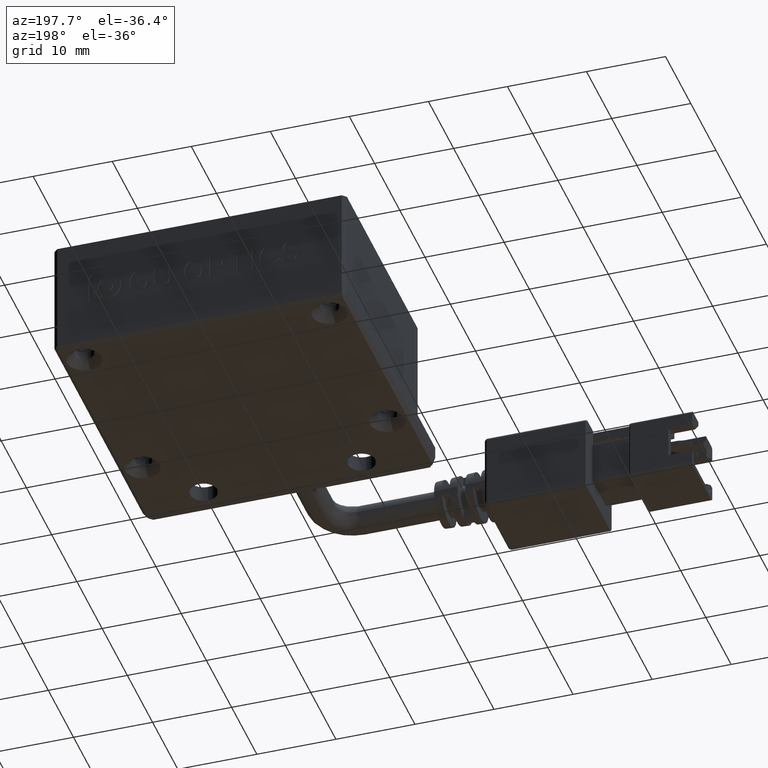
[diagram: clean part render]
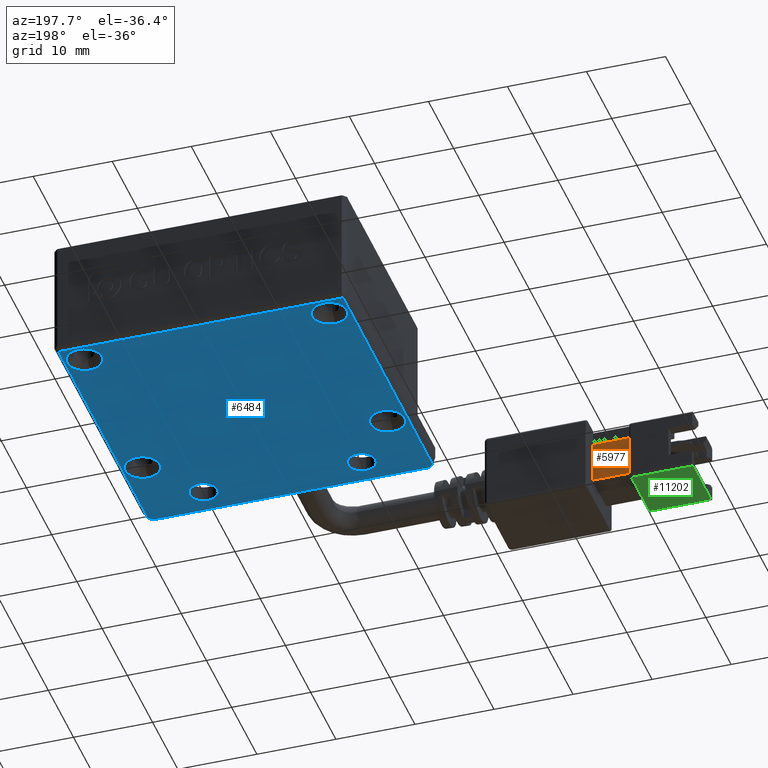
[diagram: same view with three faces highlighted in distinct colors, each labeled with its STEP entity id]
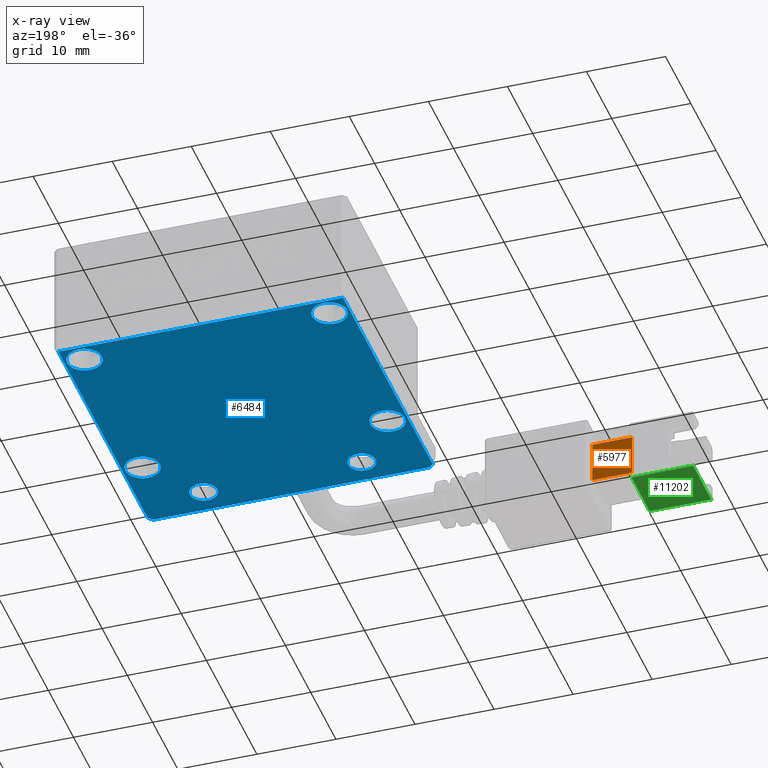
[diagram: x-ray of the same camera — body ghosted, the three highlighted faces saturated]
A machine part, auxiliary view with three faces highlighted in distinct colors.
The next image is the same camera in x-ray (body ghosted, the three faces saturated) — at least one of them is partly hidden behind the body in this view.
Their STEP definitions:

[orange] entity #5977 — the highlighted planar face has unit normal (0, -1, -0).
#1765 = VECTOR ( 'NONE', #11277, 1000.000000000000000 ) ;
#2412 = LINE ( 'NONE', #21560, #1765 ) ;
#3369 = VERTEX_POINT ( 'NONE', #19248 ) ;
#3651 = VECTOR ( 'NONE', #13303, 1000.000000000000000 ) ;
#4696 = DIRECTION ( 'NONE',  ( 0.0000000000000000000, -8.673617379884035500E-017, 1.000000000000000000 ) ) ;
#5977 = ADVANCED_FACE ( 'NONE', ( #10881 ), #25458, .F. ) ;
#6664 = EDGE_CURVE ( 'NONE', #3369, #18901, #2412, .T. ) ;
#7167 = EDGE_CURVE ( 'NONE', #18901, #10042, #19402, .T. ) ;
#10042 = VERTEX_POINT ( 'NONE', #12379 ) ;
#10335 = EDGE_LOOP ( 'NONE', ( #17642, #25910, #16051, #19518 ) ) ;
#10881 = FACE_OUTER_BOUND ( 'NONE', #10335, .T. ) ;
#11260 = CARTESIAN_POINT ( 'NONE',  ( -38.52940053455518700, -35.30364642993505700, 1.249999999983630000 ) ) ;
#11277 = DIRECTION ( 'NONE',  ( -1.000000000000000000, -6.162975822039154700E-033, -5.345529420184391300E-049 ) ) ;
#11693 = LINE ( 'NONE', #24256, #21320 ) ;
#12379 = CARTESIAN_POINT ( 'NONE',  ( -38.52940053455518700, -35.30364642993505700, 1.349999999983630300 ) ) ;
#13303 = DIRECTION ( 'NONE',  ( -0.0000000000000000000, 8.673617379884035500E-017, -1.000000000000000000 ) ) ;
#13313 = DIRECTION ( 'NONE',  ( 0.0000000000000000000, -8.673617379884035500E-017, 1.000000000000000000 ) ) ;
#13393 = CARTESIAN_POINT ( 'NONE',  ( -38.52940053455518700, -35.30364642993505700, 6.649999999983631200 ) ) ;
#13599 = VECTOR ( 'NONE', #4696, 1000.000000000000000 ) ;
#14227 = LINE ( 'NONE', #14944, #13599 ) ;
#14944 = CARTESIAN_POINT ( 'NONE',  ( -33.52940053455518000, -35.30364642993505700, 8.999999999983622000 ) ) ;
#16051 = ORIENTED_EDGE ( 'NONE', *, *, #6664, .F. ) ;
#17642 = ORIENTED_EDGE ( 'NONE', *, *, #21570, .F. ) ;
#18081 = CARTESIAN_POINT ( 'NONE',  ( -33.52940053455518000, -35.30364642993505700, 1.349999999983630300 ) ) ;
#18185 = DIRECTION ( 'NONE',  ( 1.000000000000000000, 6.162975822039154700E-033, 5.345529420184391300E-049 ) ) ;
#18528 = VERTEX_POINT ( 'NONE', #18081 ) ;
#18901 = VERTEX_POINT ( 'NONE', #13393 ) ;
#19248 = CARTESIAN_POINT ( 'NONE',  ( -33.52940053455518000, -35.30364642993505700, 6.649999999983631200 ) ) ;
#19402 = LINE ( 'NONE', #25537, #3651 ) ;
#19518 = ORIENTED_EDGE ( 'NONE', *, *, #21873, .F. ) ;
#19818 = AXIS2_PLACEMENT_3D ( 'NONE', #11260, #25551, #13313 ) ;
#21320 = VECTOR ( 'NONE', #18185, 1000.000000000000000 ) ;
#21560 = CARTESIAN_POINT ( 'NONE',  ( -38.52940053455518700, -35.30364642993505700, 6.649999999983631200 ) ) ;
#21570 = EDGE_CURVE ( 'NONE', #10042, #18528, #11693, .T. ) ;
#21873 = EDGE_CURVE ( 'NONE', #18528, #3369, #14227, .T. ) ;
#24256 = CARTESIAN_POINT ( 'NONE',  ( -38.52940053455518700, -35.30364642993505700, 1.349999999983630300 ) ) ;
#25458 = PLANE ( 'NONE',  #19818 ) ;
#25537 = CARTESIAN_POINT ( 'NONE',  ( -38.52940053455518700, -35.30364642993505700, 1.249999999983630000 ) ) ;
#25551 = DIRECTION ( 'NONE',  ( 6.162975822039154700E-033, -1.000000000000000000, -8.673617379884035500E-017 ) ) ;
#25910 = ORIENTED_EDGE ( 'NONE', *, *, #7167, .F. ) ;

[blue] entity #6484 — the highlighted planar face has unit normal (0, -0, 1).
#192 = DIRECTION ( 'NONE',  ( 1.368455531567204200E-047, -2.465190328815661900E-032, 1.000000000000000000 ) ) ;
#276 = ORIENTED_EDGE ( 'NONE', *, *, #20000, .T. ) ;
#393 = PLANE ( 'NONE',  #737 ) ;
#419 = CARTESIAN_POINT ( 'NONE',  ( 10.47059946544484400, -19.05364642993505300, -2.000000000016368700 ) ) ;
#491 = DIRECTION ( 'NONE',  ( 1.368455531567204200E-047, -2.465190328815661900E-032, 1.000000000000000000 ) ) ;
#492 = FACE_BOUND ( 'NONE', #16336, .T. ) ;
#737 = AXIS2_PLACEMENT_3D ( 'NONE', #23017, #10757, #25064 ) ;
#829 = CARTESIAN_POINT ( 'NONE',  ( -17.52940053455515800, -22.05364642993504600, -2.000000000016368700 ) ) ;
#874 = CARTESIAN_POINT ( 'NONE',  ( 18.47059946544483100, 13.44635357006495500, -2.000000000016368700 ) ) ;
#969 = CARTESIAN_POINT ( 'NONE',  ( 15.97059946544482400, 10.94635357006494500, -1.999999999969075200 ) ) ;
#1031 = AXIS2_PLACEMENT_3D ( 'NONE', #25839, #13612, #1333 ) ;
#1046 = CIRCLE ( 'NONE', #1031, 2.199999999948402800 ) ;
#1333 = DIRECTION ( 'NONE',  ( 0.0000000000000000000, 1.000000000000000000, 0.0000000000000000000 ) ) ;
#1709 = EDGE_CURVE ( 'NONE', #25568, #11485, #10694, .T. ) ;
#1777 = CARTESIAN_POINT ( 'NONE',  ( 17.97059946544484500, -22.55364642993505300, -2.000000000016368700 ) ) ;
#1917 = DIRECTION ( 'NONE',  ( 0.0000000000000000000, -1.000000000000000000, 0.0000000000000000000 ) ) ;
#2508 = DIRECTION ( 'NONE',  ( 0.0000000000000000000, -1.000000000000000000, 0.0000000000000000000 ) ) ;
#2538 = ORIENTED_EDGE ( 'NONE', *, *, #19953, .T. ) ;
#2610 = DIRECTION ( 'NONE',  ( 1.110223024625158300E-016, -1.000000000000000000, -2.465190328815661900E-032 ) ) ;
#2900 = CARTESIAN_POINT ( 'NONE',  ( 15.97059946544482400, 8.746353570116543400, -1.999999999969075200 ) ) ;
#2916 = DIRECTION ( 'NONE',  ( -1.110223024625158300E-016, 1.000000000000000000, 2.465190328815661900E-032 ) ) ;
#2953 = LINE ( 'NONE', #4654, #13845 ) ;
#3053 = DIRECTION ( 'NONE',  ( 0.0000000000000000000, 1.000000000000000000, 0.0000000000000000000 ) ) ;
#3391 = CIRCLE ( 'NONE', #11536, 1.749999999999998000 ) ;
#3448 = EDGE_CURVE ( 'NONE', #20869, #5833, #14948, .T. ) ;
#3492 = EDGE_LOOP ( 'NONE', ( #16125, #18257 ) ) ;
#3867 = CARTESIAN_POINT ( 'NONE',  ( 10.47059946544484400, -19.05364642993505300, -2.000000000016368700 ) ) ;
#4097 = ORIENTED_EDGE ( 'NONE', *, *, #9695, .T. ) ;
#4267 = EDGE_CURVE ( 'NONE', #12149, #11485, #2953, .T. ) ;
#4654 = CARTESIAN_POINT ( 'NONE',  ( 18.97059946544484200, -22.55364642993505300, -2.000000000016368700 ) ) ;
#4691 = DIRECTION ( 'NONE',  ( 1.368455531567204200E-047, -2.465190328815661900E-032, 1.000000000000000000 ) ) ;
#4883 = CARTESIAN_POINT ( 'NONE',  ( -15.02940053455515300, -12.05364642993506100, -2.000000000082761800 ) ) ;
#4892 = CARTESIAN_POINT ( 'NONE',  ( 10.47059946544484400, -20.80364642993505000, -2.000000000016368700 ) ) ;
#5019 = LINE ( 'NONE', #18341, #21390 ) ;
#5119 = DIRECTION ( 'NONE',  ( 0.7071067811865541200, -0.7071067811865408000, -1.743152798421033900E-032 ) ) ;
#5377 = CARTESIAN_POINT ( 'NONE',  ( -15.02940053455515300, -9.853646429897528600, -2.000000000082761800 ) ) ;
#5418 = CARTESIAN_POINT ( 'NONE',  ( 18.97059946544483500, 13.44635357006494800, -2.000000000016368700 ) ) ;
#5669 = ORIENTED_EDGE ( 'NONE', *, *, #3448, .T. ) ;
#5769 = DIRECTION ( 'NONE',  ( 0.0000000000000000000, 1.000000000000000000, 0.0000000000000000000 ) ) ;
#5833 = VERTEX_POINT ( 'NONE', #20943 ) ;
#5914 = DIRECTION ( 'NONE',  ( 0.0000000000000000000, -1.000000000000000000, 0.0000000000000000000 ) ) ;
#5931 = CARTESIAN_POINT ( 'NONE',  ( 15.97059946544482400, 10.94635357006494500, -1.999999999969075200 ) ) ;
#5954 = FACE_BOUND ( 'NONE', #3492, .T. ) ;
#6093 = AXIS2_PLACEMENT_3D ( 'NONE', #3867, #18232, #5914 ) ;
#6454 = AXIS2_PLACEMENT_3D ( 'NONE', #969, #15342, #3053 ) ;
#6484 = ADVANCED_FACE ( 'NONE', ( #492, #5954, #8547, #11428, #21666, #16227, #10799 ), #393, .F. ) ;
#7614 = EDGE_CURVE ( 'NONE', #16915, #12194, #11925, .T. ) ;
#7676 = AXIS2_PLACEMENT_3D ( 'NONE', #12525, #192, #14564 ) ;
#8005 = DIRECTION ( 'NONE',  ( 0.0000000000000000000, 1.000000000000000000, 0.0000000000000000000 ) ) ;
#8288 = ORIENTED_EDGE ( 'NONE', *, *, #19084, .T. ) ;
#8489 = CARTESIAN_POINT ( 'NONE',  ( -15.02940053455515800, 8.746353570116536200, -1.999999999969075200 ) ) ;
#8547 = FACE_BOUND ( 'NONE', #23943, .T. ) ;
#8897 = VERTEX_POINT ( 'NONE', #2900 ) ;
#8978 = VERTEX_POINT ( 'NONE', #13470 ) ;
#9047 = CIRCLE ( 'NONE', #6093, 1.749999999999998000 ) ;
#9068 = VERTEX_POINT ( 'NONE', #15796 ) ;
#9157 = VERTEX_POINT ( 'NONE', #11929 ) ;
#9695 = EDGE_CURVE ( 'NONE', #9157, #15280, #1046, .T. ) ;
#10291 = LINE ( 'NONE', #14904, #12876 ) ;
#10694 = LINE ( 'NONE', #25435, #26336 ) ;
#10757 = DIRECTION ( 'NONE',  ( 1.368455531567204200E-047, -2.465190328815661900E-032, 1.000000000000000000 ) ) ;
#10799 = FACE_OUTER_BOUND ( 'NONE', #12743, .T. ) ;
#10879 = ORIENTED_EDGE ( 'NONE', *, *, #17390, .F. ) ;
#11041 = EDGE_CURVE ( 'NONE', #8978, #8897, #22028, .T. ) ;
#11247 = CIRCLE ( 'NONE', #23319, 2.199999999948402800 ) ;
#11415 = DIRECTION ( 'NONE',  ( 1.368455531567204200E-047, -2.465190328815661900E-032, 1.000000000000000000 ) ) ;
#11428 = FACE_BOUND ( 'NONE', #15932, .T. ) ;
#11485 = VERTEX_POINT ( 'NONE', #21700 ) ;
#11536 = AXIS2_PLACEMENT_3D ( 'NONE', #26429, #14173, #1917 ) ;
#11537 = CIRCLE ( 'NONE', #15911, 2.200000000037532800 ) ;
#11925 = CIRCLE ( 'NONE', #7676, 2.200000000037532800 ) ;
#11929 = CARTESIAN_POINT ( 'NONE',  ( -15.02940053455515800, 13.14635357001334100, -1.999999999969075200 ) ) ;
#12075 = DIRECTION ( 'NONE',  ( 1.368455531567204200E-047, -2.465190328815661900E-032, 1.000000000000000000 ) ) ;
#12149 = VERTEX_POINT ( 'NONE', #1777 ) ;
#12194 = VERTEX_POINT ( 'NONE', #12819 ) ;
#12277 = VERTEX_POINT ( 'NONE', #4892 ) ;
#12380 = VERTEX_POINT ( 'NONE', #25344 ) ;
#12525 = CARTESIAN_POINT ( 'NONE',  ( 15.97059946544484400, -12.05364642993505700, -2.000000000082761800 ) ) ;
#12743 = EDGE_LOOP ( 'NONE', ( #17471, #22782, #19150, #21048, #10879, #17853 ) ) ;
#12813 = CARTESIAN_POINT ( 'NONE',  ( -15.02940053455515800, 10.94635357006493900, -1.999999999969075200 ) ) ;
#12819 = CARTESIAN_POINT ( 'NONE',  ( 15.97059946544484400, -9.853646429897525000, -2.000000000082761800 ) ) ;
#12876 = VECTOR ( 'NONE', #2610, 1000.000000000000000 ) ;
#13055 = CIRCLE ( 'NONE', #24469, 2.200000000037532800 ) ;
#13057 = VERTEX_POINT ( 'NONE', #14190 ) ;
#13470 = CARTESIAN_POINT ( 'NONE',  ( 15.97059946544482400, 13.14635357001334800, -1.999999999969075200 ) ) ;
#13603 = DIRECTION ( 'NONE',  ( 1.000000000000000000, 1.110223024625158300E-016, -1.094764425253762900E-047 ) ) ;
#13612 = DIRECTION ( 'NONE',  ( 1.368455531567204200E-047, -2.465190328815661900E-032, 1.000000000000000000 ) ) ;
#13842 = VERTEX_POINT ( 'NONE', #874 ) ;
#13845 = VECTOR ( 'NONE', #25189, 1000.000000000000000 ) ;
#13915 = EDGE_CURVE ( 'NONE', #12380, #13842, #25519, .T. ) ;
#14033 = EDGE_CURVE ( 'NONE', #12194, #16915, #13055, .T. ) ;
#14037 = AXIS2_PLACEMENT_3D ( 'NONE', #17015, #4691, #19082 ) ;
#14173 = DIRECTION ( 'NONE',  ( 1.368455531567204200E-047, -2.465190328815661900E-032, 1.000000000000000000 ) ) ;
#14190 = CARTESIAN_POINT ( 'NONE',  ( 10.47059946544484400, -17.30364642993505700, -2.000000000016368700 ) ) ;
#14564 = DIRECTION ( 'NONE',  ( 0.0000000000000000000, 1.000000000000000000, 0.0000000000000000000 ) ) ;
#14658 = EDGE_LOOP ( 'NONE', ( #8288, #22646 ) ) ;
#14792 = DIRECTION ( 'NONE',  ( 1.368455531567204200E-047, -2.465190328815661900E-032, 1.000000000000000000 ) ) ;
#14850 = DIRECTION ( 'NONE',  ( 0.0000000000000000000, 1.000000000000000000, 0.0000000000000000000 ) ) ;
#14904 = CARTESIAN_POINT ( 'NONE',  ( 18.47059946544483800, -23.05364642993505300, -2.000000000016368700 ) ) ;
#14948 = CIRCLE ( 'NONE', #23002, 1.749999999999998000 ) ;
#15280 = VERTEX_POINT ( 'NONE', #8489 ) ;
#15342 = DIRECTION ( 'NONE',  ( 1.368455531567204200E-047, -2.465190328815661900E-032, 1.000000000000000000 ) ) ;
#15796 = CARTESIAN_POINT ( 'NONE',  ( 18.47059946544484500, -22.05364642993505000, -2.000000000016368700 ) ) ;
#15901 = ORIENTED_EDGE ( 'NONE', *, *, #14033, .T. ) ;
#15911 = AXIS2_PLACEMENT_3D ( 'NONE', #4883, #19277, #5769 ) ;
#15932 = EDGE_LOOP ( 'NONE', ( #15901, #23974 ) ) ;
#15946 = EDGE_CURVE ( 'NONE', #13842, #9068, #10291, .T. ) ;
#16125 = ORIENTED_EDGE ( 'NONE', *, *, #11041, .T. ) ;
#16227 = FACE_BOUND ( 'NONE', #23107, .T. ) ;
#16336 = EDGE_LOOP ( 'NONE', ( #4097, #2538 ) ) ;
#16915 = VERTEX_POINT ( 'NONE', #26625 ) ;
#17015 = CARTESIAN_POINT ( 'NONE',  ( -15.02940053455515300, -12.05364642993506100, -2.000000000082761800 ) ) ;
#17271 = CARTESIAN_POINT ( 'NONE',  ( -17.52940053455515800, -23.05364642993505700, -2.000000000016368700 ) ) ;
#17390 = EDGE_CURVE ( 'NONE', #12149, #9068, #5019, .T. ) ;
#17471 = ORIENTED_EDGE ( 'NONE', *, *, #1709, .F. ) ;
#17853 = ORIENTED_EDGE ( 'NONE', *, *, #4267, .T. ) ;
#18232 = DIRECTION ( 'NONE',  ( 1.368455531567204200E-047, -2.465190328815661900E-032, 1.000000000000000000 ) ) ;
#18257 = ORIENTED_EDGE ( 'NONE', *, *, #19462, .T. ) ;
#18341 = CARTESIAN_POINT ( 'NONE',  ( 17.97059946544484500, -22.55364642993505300, -2.000000000016368700 ) ) ;
#18430 = DIRECTION ( 'NONE',  ( 0.7071067811865392500, 0.7071067811865557900, 1.743152798421068700E-032 ) ) ;
#18616 = VECTOR ( 'NONE', #2916, 1000.000000000000000 ) ;
#18973 = VERTEX_POINT ( 'NONE', #5377 ) ;
#19082 = DIRECTION ( 'NONE',  ( 0.0000000000000000000, 1.000000000000000000, 0.0000000000000000000 ) ) ;
#19084 = EDGE_CURVE ( 'NONE', #12277, #13057, #9047, .T. ) ;
#19150 = ORIENTED_EDGE ( 'NONE', *, *, #13915, .T. ) ;
#19277 = DIRECTION ( 'NONE',  ( 1.368455531567204200E-047, -2.465190328815661900E-032, 1.000000000000000000 ) ) ;
#19462 = EDGE_CURVE ( 'NONE', #8897, #8978, #20874, .T. ) ;
#19496 = CARTESIAN_POINT ( 'NONE',  ( -9.529400534555158200, -20.80364642993505300, -2.000000000016368700 ) ) ;
#19615 = VERTEX_POINT ( 'NONE', #24006 ) ;
#19953 = EDGE_CURVE ( 'NONE', #15280, #9157, #11247, .T. ) ;
#20000 = EDGE_CURVE ( 'NONE', #19615, #18973, #11537, .T. ) ;
#20115 = VECTOR ( 'NONE', #13603, 1000.000000000000000 ) ;
#20293 = DIRECTION ( 'NONE',  ( 1.368455531567204200E-047, -2.465190328815661900E-032, 1.000000000000000000 ) ) ;
#20297 = EDGE_CURVE ( 'NONE', #25568, #12380, #24031, .T. ) ;
#20869 = VERTEX_POINT ( 'NONE', #19496 ) ;
#20874 = CIRCLE ( 'NONE', #6454, 2.199999999948402800 ) ;
#20943 = CARTESIAN_POINT ( 'NONE',  ( -9.529400534555158200, -17.30364642993505700, -2.000000000016368700 ) ) ;
#21048 = ORIENTED_EDGE ( 'NONE', *, *, #15946, .T. ) ;
#21156 = EDGE_CURVE ( 'NONE', #13057, #12277, #26439, .T. ) ;
#21164 = ORIENTED_EDGE ( 'NONE', *, *, #24834, .T. ) ;
#21185 = AXIS2_PLACEMENT_3D ( 'NONE', #5931, #20293, #8005 ) ;
#21390 = VECTOR ( 'NONE', #18430, 1000.000000000000000 ) ;
#21666 = FACE_BOUND ( 'NONE', #14658, .T. ) ;
#21700 = CARTESIAN_POINT ( 'NONE',  ( -17.02940053455514400, -22.55364642993505700, -2.000000000016369100 ) ) ;
#22028 = CIRCLE ( 'NONE', #21185, 2.199999999948402800 ) ;
#22646 = ORIENTED_EDGE ( 'NONE', *, *, #21156, .T. ) ;
#22782 = ORIENTED_EDGE ( 'NONE', *, *, #20297, .T. ) ;
#22816 = CIRCLE ( 'NONE', #14037, 2.200000000037532800 ) ;
#22823 = EDGE_CURVE ( 'NONE', #18973, #19615, #22816, .T. ) ;
#23002 = AXIS2_PLACEMENT_3D ( 'NONE', #23692, #11415, #25699 ) ;
#23017 = CARTESIAN_POINT ( 'NONE',  ( 18.97059946544484200, -23.05364642993505300, -2.000000000016368700 ) ) ;
#23107 = EDGE_LOOP ( 'NONE', ( #5669, #21164 ) ) ;
#23319 = AXIS2_PLACEMENT_3D ( 'NONE', #12813, #491, #14850 ) ;
#23692 = CARTESIAN_POINT ( 'NONE',  ( -9.529400534555158200, -19.05364642993505700, -2.000000000016368700 ) ) ;
#23943 = EDGE_LOOP ( 'NONE', ( #26079, #276 ) ) ;
#23974 = ORIENTED_EDGE ( 'NONE', *, *, #7614, .T. ) ;
#24006 = CARTESIAN_POINT ( 'NONE',  ( -15.02940053455515300, -14.25364642997259400, -2.000000000082761800 ) ) ;
#24031 = LINE ( 'NONE', #17271, #18616 ) ;
#24348 = CARTESIAN_POINT ( 'NONE',  ( 15.97059946544484400, -12.05364642993505700, -2.000000000082761800 ) ) ;
#24469 = AXIS2_PLACEMENT_3D ( 'NONE', #24348, #12075, #26367 ) ;
#24802 = AXIS2_PLACEMENT_3D ( 'NONE', #419, #14792, #2508 ) ;
#24834 = EDGE_CURVE ( 'NONE', #5833, #20869, #3391, .T. ) ;
#25064 = DIRECTION ( 'NONE',  ( 1.110223024625158300E-016, -1.000000000000000000, -2.465190328815661900E-032 ) ) ;
#25189 = DIRECTION ( 'NONE',  ( -1.000000000000000000, -1.110223024625158300E-016, 1.094764425253762900E-047 ) ) ;
#25344 = CARTESIAN_POINT ( 'NONE',  ( -17.52940053455516500, 13.44635357006494800, -2.000000000016368700 ) ) ;
#25435 = CARTESIAN_POINT ( 'NONE',  ( -17.52940053455515800, -22.05364642993504600, -2.000000000016368700 ) ) ;
#25519 = LINE ( 'NONE', #5418, #20115 ) ;
#25568 = VERTEX_POINT ( 'NONE', #829 ) ;
#25699 = DIRECTION ( 'NONE',  ( 0.0000000000000000000, -1.000000000000000000, 0.0000000000000000000 ) ) ;
#25839 = CARTESIAN_POINT ( 'NONE',  ( -15.02940053455515800, 10.94635357006493900, -1.999999999969075200 ) ) ;
#26079 = ORIENTED_EDGE ( 'NONE', *, *, #22823, .T. ) ;
#26336 = VECTOR ( 'NONE', #5119, 1000.000000000000100 ) ;
#26367 = DIRECTION ( 'NONE',  ( 0.0000000000000000000, 1.000000000000000000, 0.0000000000000000000 ) ) ;
#26429 = CARTESIAN_POINT ( 'NONE',  ( -9.529400534555158200, -19.05364642993505700, -2.000000000016368700 ) ) ;
#26439 = CIRCLE ( 'NONE', #24802, 1.749999999999998000 ) ;
#26625 = CARTESIAN_POINT ( 'NONE',  ( 15.97059946544484400, -14.25364642997259100, -2.000000000082761800 ) ) ;

[green] entity #11202 — the highlighted planar face has unit normal (-0, 0, 1).
#314 = VECTOR ( 'NONE', #22718, 1000.000000000000000 ) ;
#463 = CARTESIAN_POINT ( 'NONE',  ( -46.52940053455518000, -34.45364642993505600, -1.636971808105514000E-011 ) ) ;
#1582 = CARTESIAN_POINT ( 'NONE',  ( -46.52940053455518000, -34.45364642993505600, -1.636971808105514000E-011 ) ) ;
#2464 = DIRECTION ( 'NONE',  ( -1.336382355046097800E-048, 1.301042606982605300E-016, 1.000000000000000000 ) ) ;
#3653 = DIRECTION ( 'NONE',  ( -1.000000000000000000, -6.162975822039154700E-033, -5.345529420184391300E-049 ) ) ;
#5611 = LINE ( 'NONE', #12167, #10464 ) ;
#5765 = LINE ( 'NONE', #18632, #314 ) ;
#6496 = PLANE ( 'NONE',  #24793 ) ;
#8742 = VERTEX_POINT ( 'NONE', #463 ) ;
#9209 = CARTESIAN_POINT ( 'NONE',  ( -46.52940053455518000, -41.65364642993505800, -1.636798335757916300E-011 ) ) ;
#9983 = CARTESIAN_POINT ( 'NONE',  ( -38.72940053455517500, -34.45364642993505600, -1.636971808105514000E-011 ) ) ;
#10296 = VECTOR ( 'NONE', #23057, 1000.000000000000000 ) ;
#10464 = VECTOR ( 'NONE', #24439, 1000.000000000000000 ) ;
#11202 = ADVANCED_FACE ( 'NONE', ( #25815 ), #6496, .F. ) ;
#12167 = CARTESIAN_POINT ( 'NONE',  ( -46.52940053455518000, -41.65364642993505800, -1.636798335757916300E-011 ) ) ;
#13191 = EDGE_CURVE ( 'NONE', #8742, #18440, #5765, .T. ) ;
#13243 = CARTESIAN_POINT ( 'NONE',  ( -38.72940053455517500, -41.65364642993505800, -1.636798335757916300E-011 ) ) ;
#14066 = EDGE_CURVE ( 'NONE', #18440, #17037, #5611, .T. ) ;
#14749 = CARTESIAN_POINT ( 'NONE',  ( -46.52940053455518000, -34.05364642993505700, -1.636971808105514000E-011 ) ) ;
#15019 = EDGE_CURVE ( 'NONE', #25742, #8742, #19088, .T. ) ;
#15734 = LINE ( 'NONE', #23147, #10296 ) ;
#16270 = EDGE_LOOP ( 'NONE', ( #23920, #20252, #22630, #24235 ) ) ;
#16813 = DIRECTION ( 'NONE',  ( -6.162975822039154700E-033, 1.000000000000000000, -1.301042606982605300E-016 ) ) ;
#17037 = VERTEX_POINT ( 'NONE', #13243 ) ;
#18440 = VERTEX_POINT ( 'NONE', #9209 ) ;
#18632 = CARTESIAN_POINT ( 'NONE',  ( -46.52940053455518000, -34.05364642993505700, -1.636971808105514000E-011 ) ) ;
#19088 = LINE ( 'NONE', #1582, #23856 ) ;
#19374 = EDGE_CURVE ( 'NONE', #17037, #25742, #15734, .T. ) ;
#20252 = ORIENTED_EDGE ( 'NONE', *, *, #14066, .F. ) ;
#22630 = ORIENTED_EDGE ( 'NONE', *, *, #13191, .F. ) ;
#22718 = DIRECTION ( 'NONE',  ( 6.162975822039154700E-033, -1.000000000000000000, 1.301042606982605300E-016 ) ) ;
#23057 = DIRECTION ( 'NONE',  ( -6.162975822039154700E-033, 1.000000000000000000, -1.301042606982605300E-016 ) ) ;
#23147 = CARTESIAN_POINT ( 'NONE',  ( -38.72940053455517500, -34.05364642993505700, -1.636971808105514000E-011 ) ) ;
#23856 = VECTOR ( 'NONE', #3653, 1000.000000000000000 ) ;
#23920 = ORIENTED_EDGE ( 'NONE', *, *, #19374, .F. ) ;
#24235 = ORIENTED_EDGE ( 'NONE', *, *, #15019, .F. ) ;
#24439 = DIRECTION ( 'NONE',  ( 1.000000000000000000, 6.162975822039154700E-033, 5.345529420184391300E-049 ) ) ;
#24793 = AXIS2_PLACEMENT_3D ( 'NONE', #14749, #2464, #16813 ) ;
#25742 = VERTEX_POINT ( 'NONE', #9983 ) ;
#25815 = FACE_OUTER_BOUND ( 'NONE', #16270, .T. ) ;